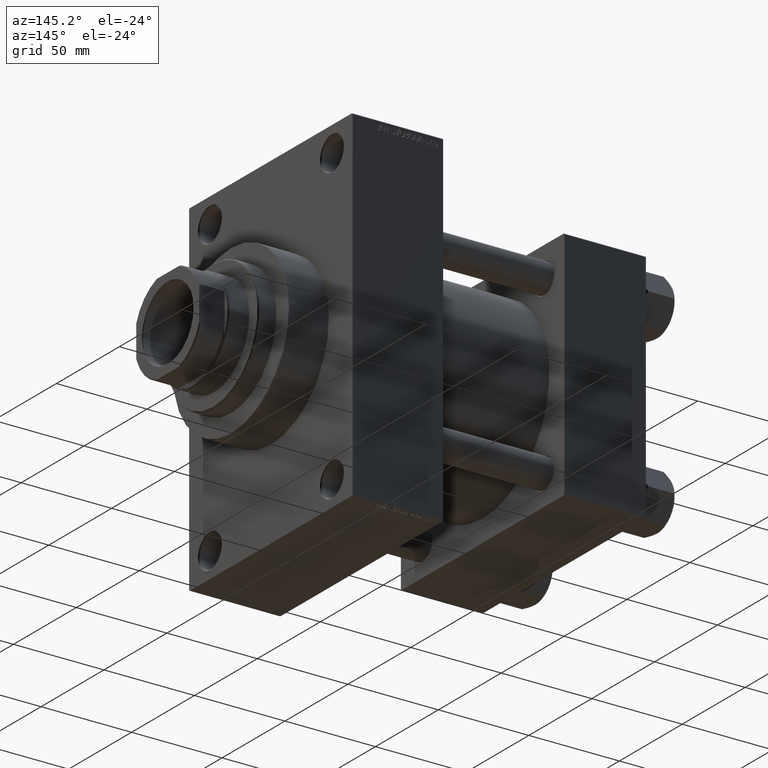
[diagram: clean part render]
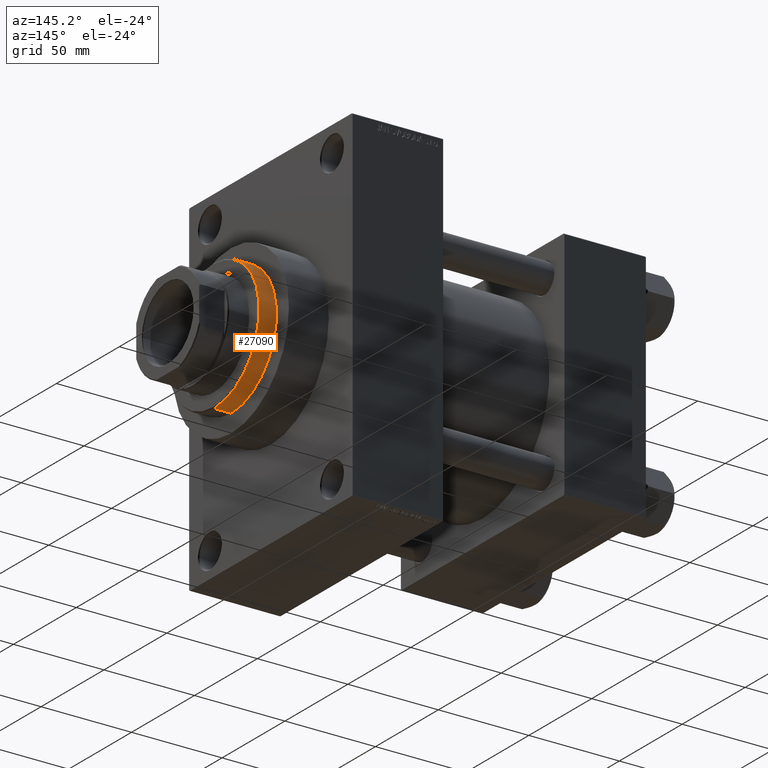
[diagram: same view with one face highlighted and labeled with its STEP entity id]
A machine part, auxiliary view. The second image highlights one B-rep face of the part: STEP entity #27090.
In plain terms, the highlighted cylindrical surface (partial cylindrical patch) has radius 36 mm, axis along (-1, 0, 0).
Its self-contained STEP definition (entity closure, byte-faithful):
#1186 = CARTESIAN_POINT ( 'NONE',  ( -36.00000000000000000, 0.000000000000000000, 43.25999999999999801 ) ) ;
#3893 = ORIENTED_EDGE ( 'NONE', *, *, #21080, .T. ) ;
#4172 = EDGE_CURVE ( 'NONE', #40435, #22658, #34127, .T. ) ;
#5724 = DIRECTION ( 'NONE',  ( 0.000000000000000000, 0.000000000000000000, 1.000000000000000000 ) ) ;
#8349 = FACE_OUTER_BOUND ( 'NONE', #33826, .T. ) ;
#10003 = DIRECTION ( 'NONE',  ( 0.000000000000000000, 0.000000000000000000, -1.000000000000000000 ) ) ;
#10022 = CARTESIAN_POINT ( 'NONE',  ( 36.00000000000000000, 4.408728476930470856E-15, 52.76000000000001933 ) ) ;
#12214 = DIRECTION ( 'NONE',  ( -1.000000000000000000, 0.000000000000000000, 0.000000000000000000 ) ) ;
#14650 = ORIENTED_EDGE ( 'NONE', *, *, #4172, .T. ) ;
#14816 = CARTESIAN_POINT ( 'NONE',  ( -36.00000000000000000, 0.000000000000000000, 52.76000000000001933 ) ) ;
#17072 = CARTESIAN_POINT ( 'NONE',  ( 36.00000000000000000, 4.408728476930470856E-15, 43.25999999999999801 ) ) ;
#17745 = VERTEX_POINT ( 'NONE', #14816 ) ;
#19744 = DIRECTION ( 'NONE',  ( 1.000000000000000000, 0.000000000000000000, 0.000000000000000000 ) ) ;
#20259 = VECTOR ( 'NONE', #42628, 1000.000000000000000 ) ;
#21080 = EDGE_CURVE ( 'NONE', #17745, #40435, #39013, .T. ) ;
#22658 = VERTEX_POINT ( 'NONE', #17072 ) ;
#23263 = ORIENTED_EDGE ( 'NONE', *, *, #31093, .F. ) ;
#26723 = CARTESIAN_POINT ( 'NONE',  ( 0.000000000000000000, 0.000000000000000000, 53.26000000000000512 ) ) ;
#27090 = ADVANCED_FACE ( 'NONE', ( #8349 ), #37812, .T. ) ;
#27251 = VERTEX_POINT ( 'NONE', #10022 ) ;
#27918 = CARTESIAN_POINT ( 'NONE',  ( -36.00000000000000000, 0.000000000000000000, 53.26000000000000512 ) ) ;
#28374 = CARTESIAN_POINT ( 'NONE',  ( 0.000000000000000000, 0.000000000000000000, 52.76000000000001933 ) ) ;
#29932 = LINE ( 'NONE', #34251, #33646 ) ;
#31093 = EDGE_CURVE ( 'NONE', #27251, #22658, #29932, .T. ) ;
#33548 = DIRECTION ( 'NONE',  ( -0.000000000000000000, -0.000000000000000000, -1.000000000000000000 ) ) ;
#33646 = VECTOR ( 'NONE', #33548, 1000.000000000000000 ) ;
#33826 = EDGE_LOOP ( 'NONE', ( #23263, #34366, #3893, #14650 ) ) ;
#34055 = AXIS2_PLACEMENT_3D ( 'NONE', #46038, #5724, #19744 ) ;
#34127 = CIRCLE ( 'NONE', #34055, 36.00000000000000000 ) ;
#34251 = CARTESIAN_POINT ( 'NONE',  ( 36.00000000000000000, 4.408728476930470856E-15, 53.26000000000000512 ) ) ;
#34366 = ORIENTED_EDGE ( 'NONE', *, *, #47775, .T. ) ;
#37326 = AXIS2_PLACEMENT_3D ( 'NONE', #26723, #45281, #12214 ) ;
#37812 = CYLINDRICAL_SURFACE ( 'NONE', #37326, 36.00000000000000000 ) ;
#38743 = DIRECTION ( 'NONE',  ( 1.000000000000000000, 0.000000000000000000, 0.000000000000000000 ) ) ;
#39013 = LINE ( 'NONE', #27918, #20259 ) ;
#40435 = VERTEX_POINT ( 'NONE', #1186 ) ;
#40725 = CIRCLE ( 'NONE', #45315, 36.00000000000000000 ) ;
#42628 = DIRECTION ( 'NONE',  ( -0.000000000000000000, -0.000000000000000000, -1.000000000000000000 ) ) ;
#45281 = DIRECTION ( 'NONE',  ( -0.000000000000000000, -0.000000000000000000, -1.000000000000000000 ) ) ;
#45315 = AXIS2_PLACEMENT_3D ( 'NONE', #28374, #10003, #38743 ) ;
#46038 = CARTESIAN_POINT ( 'NONE',  ( 0.000000000000000000, 0.000000000000000000, 43.25999999999999801 ) ) ;
#47775 = EDGE_CURVE ( 'NONE', #27251, #17745, #40725, .T. ) ;